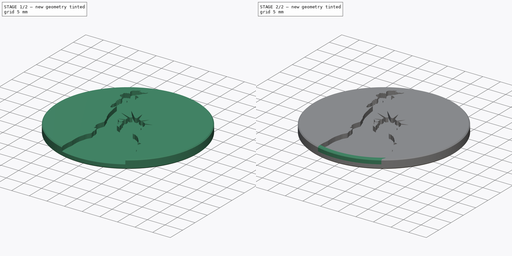
[diagram: build sequence overview — one tinted view per stage of 2, left to right]
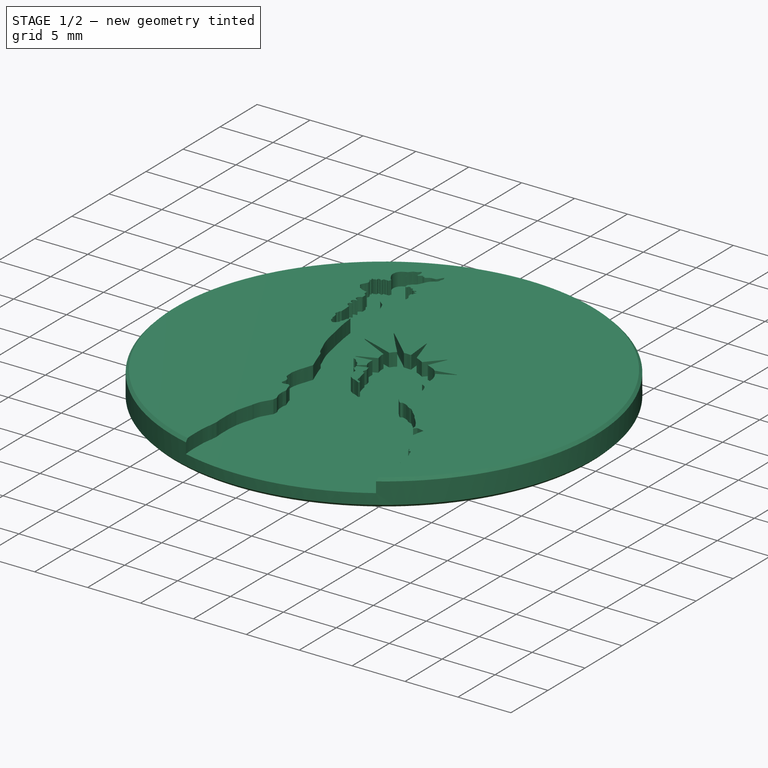
[diagram: stage 1 of 2 — iso view after this stage's code; geometry added in this stage tinted green]
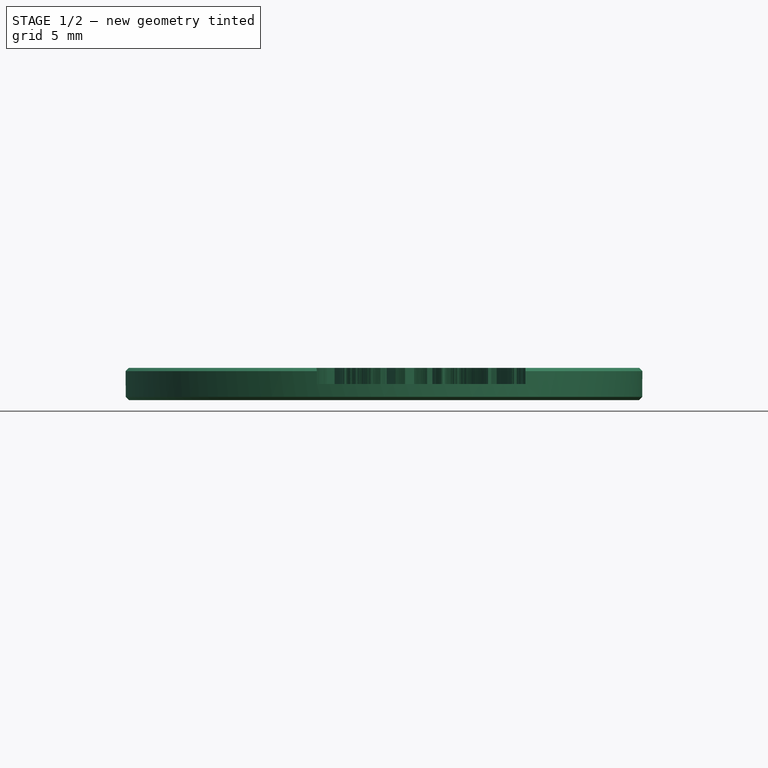
[diagram: stage 1 of 2 — front view after this stage's code; geometry added in this stage tinted green]
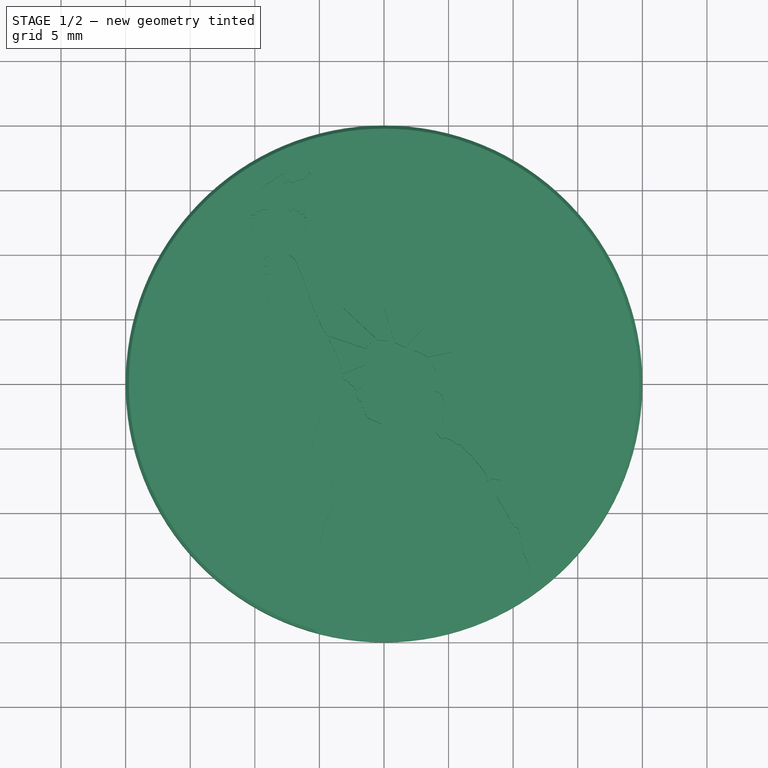
[diagram: stage 1 of 2 — top view after this stage's code; geometry added in this stage tinted green]
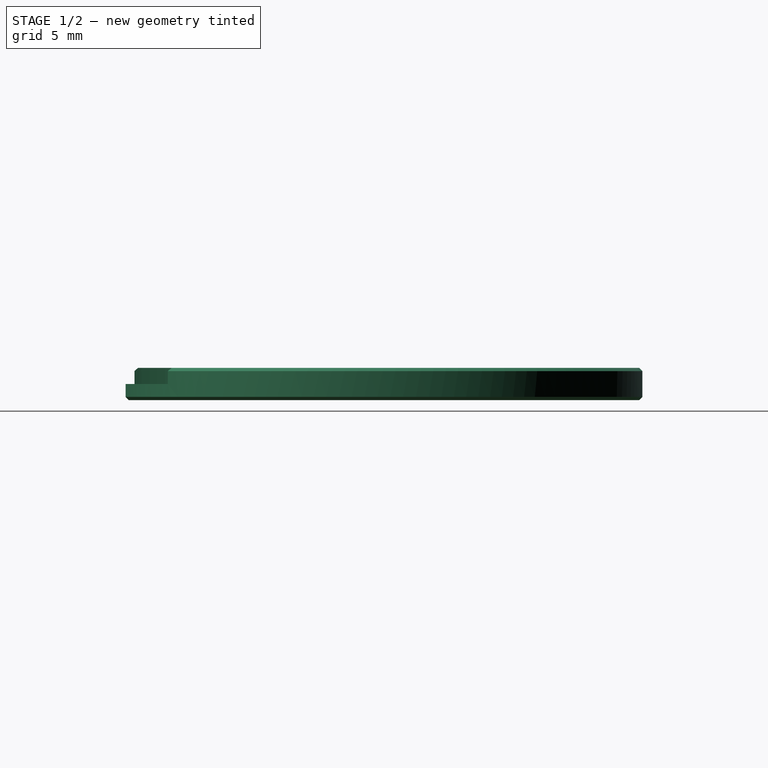
[diagram: stage 1 of 2 — right view after this stage's code; geometry added in this stage tinted green]
FCSTD DOCUMENT  (FreeCAD 0.20R29603 (Git))
Label: statueofliberty-coin-44630
License: All rights reserved
LicenseURL: http://en.wikipedia.org/wiki/All_rights_reserved
objects: Sketcher::SketchObject×5, Part::Feature×4, Part::FeaturePython×3, PartDesign::Plane×2, PartDesign::Revolution×2, App::DocumentObjectGroup×2, App::TextDocument×1, Spreadsheet::Sheet×1, PartDesign::Pocket×1, PartDesign::Body×1
note: 21 computed .brp shape members not serialized (recipe doc carries the construction recipe); baked Part::Feature solids carry a one-line shape summary decoded from their .brp

FEATURE [App::TextDocument] Text_document  label="Text document"
  Text = https://publicdomainvectors.org/en/free-clipart/Statue-Of-Liberty-Silhouette/44630.html
FEATURE [Spreadsheet::Sheet] Spreadsheet
  cells = A2=Vector X center; B2=vec_x; C2(dim_vec_x)==-11 mm; A3=Vector Y center; B3=vec_y; C3(dim_vec_y)==17 mm; A4=Coin radius; B4=coin_r; C4(dim_coin_r)==20 mm; A5=Coin height; B5=coin_h; C5(dim_coin_h)==2.5 mm; D5==2.5 mm; A6=Engrave depth; B6=engrave_h; C6(dim_engrave_h)==dim_coin_h / 2; A7=Chamfer width; B7=chamfer_w; C7(dim_chamfer_w)==dim_coin_h / 10; A8=Chamfer radius; B8=chamfer_r; C8(dim_chamfer_r)==dim_coin_r - dim_chamfer_w; A9=SVG Scale; B9=svg_scale; C9=0.08; A11=Edge dimple radius; B11=dimple_r; C11(dim_dimple_r)==0.5 mm; A12=Edge dimple count; B12=dimple_count; C12(dim_dimple_count)=64
FEATURE [PartDesign::Plane] DatumPlane  label="BaseXYDatumPlane"
  Length = 60
  MapMode = 5
  ResizeMode = 0
  Support = -> [XY_Plane]
  Width = 60
FEATURE [Sketcher::SketchObject] Sketch001  label="CircleSketch"
  FullyConstrained = true
  MapMode = 5
  Support = -> [DatumPlane]
  expr: Constraints[1] = Spreadsheet.dim_coin_r - Spreadsheet.dim_chamfer_w
  expr: Constraints[3] = Spreadsheet.dim_coin_r - 1 mm
  sketch-geometry (6):
    g0: Circle CenterX=0 CenterY=0 CenterZ=0 NormalX=0 NormalY=0 NormalZ=1 AngleXU=0 Radius=19.75
    g1: Circle CenterX=0 CenterY=0 CenterZ=0 NormalX=0 NormalY=0 NormalZ=1 AngleXU=0 Radius=19
    g2: LineSegment StartX=0 StartY=0 StartZ=0 EndX=0 EndY=19 EndZ=0
    g3: LineSegment StartX=0 StartY=0 StartZ=0 EndX=0 EndY=-19 EndZ=0
    g4: LineSegment StartX=0 StartY=0 StartZ=0 EndX=-19 EndY=0 EndZ=0
    g5: LineSegment StartX=0 StartY=0 StartZ=0 EndX=19 EndY=0 EndZ=0
  constraints (16):
    c: Coincident(g0,g-1)
    c: Radius(g0) = 19.75
    c: Coincident(g1,g0)
    c: Radius(g1) = 19
    c: Coincident(g2,g0)
    c: PointOnObject(g2,g1)
    c: Vertical(g2)
    c: Coincident(g3,g0)
    c: PointOnObject(g3,g1)
    c: Vertical(g3)
    c: Coincident(g4,g0)
    c: PointOnObject(g4,g1)
    c: Horizontal(g4)
    c: Coincident(g5,g0)
    c: PointOnObject(g5,g1)
    c: Horizontal(g5)
FEATURE [PartDesign::Plane] DatumPlane001  label="ProfileYZDatumPlane"
  Length = 60
  MapMode = 5
  Placement = pos=(0,0,0) rot=(0.57735,0.57735,0.57735;2.0944rad)
  ResizeMode = 0
  Support = -> [YZ_Plane]
  Width = 60
FEATURE [Sketcher::SketchObject] Sketch  label="CoinProfileSketch"
  FullyConstrained = true
  MapMode = 5
  Placement = pos=(0,0,0) rot=(0.57735,0.57735,0.57735;2.0944rad)
  Support = -> [DatumPlane001]
  expr: Constraints[10] = Spreadsheet.dim_chamfer_w
  expr: Constraints[12] = Spreadsheet.dim_coin_h
  expr: Constraints[13] = Spreadsheet.dim_coin_r
  expr: Constraints[14] = Spreadsheet.dim_coin_r
  expr: Constraints[15] = Spreadsheet.dim_coin_h
  expr: Constraints[16] = Spreadsheet.dim_chamfer_r
  sketch-geometry (11):
    g0: LineSegment StartX=0 StartY=0 StartZ=0 EndX=0 EndY=-2.5 EndZ=0
    g1: LineSegment StartX=19.75 StartY=0 StartZ=0 EndX=20 EndY=-0.25 EndZ=0
    g2: LineSegment StartX=20 StartY=-0.25 StartZ=0 EndX=20 EndY=-2.25 EndZ=0
    g3: LineSegment StartX=20.25 StartY=0 StartZ=0 EndX=20 EndY=0 EndZ=0
    g4: LineSegment StartX=20 StartY=0 StartZ=0 EndX=20 EndY=-0.25 EndZ=0
    g5: LineSegment StartX=20 StartY=-2.25 StartZ=0 EndX=20 EndY=-2.5 EndZ=0
    g6: LineSegment StartX=0 StartY=0 StartZ=0 EndX=19.75 EndY=0 EndZ=0
    g7: LineSegment StartX=19.75 StartY=0 StartZ=0 EndX=20 EndY=0 EndZ=0
    g8: LineSegment StartX=20 StartY=-2.5 StartZ=0 EndX=19.75 EndY=-2.5 EndZ=0
    g9: LineSegment StartX=19.75 StartY=-2.5 StartZ=0 EndX=0 EndY=-2.5 EndZ=0
    g10: LineSegment StartX=19.75 StartY=-2.5 StartZ=0 EndX=20 EndY=-2.25 EndZ=0
  constraints (31):
    c: Vertical(g0)
    c: Coincident(g1,g2)
    c: Vertical(g2)
    c: Horizontal(g3)
    c: Coincident(g4,g3)
    c: Coincident(g4,g1)
    c: Coincident(g5,g2)
    c: Vertical(g5)
    c: Vertical(g4)
    c: Equal(g3,g4)
    c: DistanceY(g5,g5) = 0.25
    c: Equal(g5,g4)
    c: DistanceY(g5,g3) = 2.5
    c: DistanceX(g0,g5) = 20
    c: DistanceX(g-1,g3) = 20
    c: DistanceY(g0,g-1) = 2.5
    c: DistanceX(g1) = 19.75
    c: Coincident(g6,g0)
    c: Coincident(g6,g1)
    c: Horizontal(g6)
    c: Coincident(g7,g1)
    c: Coincident(g7,g3)
    c: Horizontal(g7)
    c: Coincident(g8,g5)
    c: Horizontal(g8)
    c: Coincident(g9,g8)
    c: Coincident(g9,g0)
    c: Horizontal(g9)
    c: Coincident(g10,g9)
    c: Coincident(g10,g2)
    c: Equal(g9,g6)
FEATURE [PartDesign::Revolution] Revolution  label="CoinRevolution"
  Angle = 360
  Axis = (-1e-16,1e-16,1)
  Base = (0,0,0)
  Placement = pos=(0,0,0) rot=(0.57735,0.57735,0.57735;2.0944rad)
  Profile = -> Sketch
  ReferenceAxis = -> Sketch [V_Axis]
  Reversed = true
FEATURE [Sketcher::SketchObject] Sketch002  label="CoinEdgeProfileSketch"
  FullyConstrained = true
  MapMode = 5
  Placement = pos=(0,0,0) rot=(0.57735,0.57735,0.57735;2.0944rad)
  Support = -> [DatumPlane001]
  expr: Constraints[10] = Spreadsheet.dim_coin_r
  expr: Constraints[11] = Spreadsheet.dim_coin_h
  expr: Constraints[17] = Spreadsheet.dim_chamfer_r
  expr: Constraints[6] = Spreadsheet.dim_chamfer_w
  expr: Constraints[8] = Spreadsheet.dim_coin_h
  expr: Constraints[9] = Spreadsheet.dim_coin_r
  sketch-geometry (13):
    g0: LineSegment StartX=0 StartY=2e-16 StartZ=0 EndX=0 EndY=-2.5 EndZ=0
    g1: LineSegment StartX=20 StartY=-0.25 StartZ=0 EndX=20 EndY=-2.25 EndZ=0
    g2: LineSegment StartX=20 StartY=2e-16 StartZ=0 EndX=20 EndY=-0.25 EndZ=0
    g3: LineSegment StartX=20 StartY=-2.25 StartZ=0 EndX=20 EndY=-2.5 EndZ=0
    g4: LineSegment StartX=0 StartY=2e-16 StartZ=0 EndX=19 EndY=2e-16 EndZ=0
    g5: LineSegment StartX=19 StartY=2e-16 StartZ=0 EndX=19 EndY=-2.5 EndZ=0
    g6: LineSegment StartX=19 StartY=2e-16 StartZ=0 EndX=19.75 EndY=2e-16 EndZ=0
    g7: LineSegment StartX=19.75 StartY=2e-16 StartZ=0 EndX=20 EndY=-0.25 EndZ=0
    g8: LineSegment StartX=19.75 StartY=2e-16 StartZ=0 EndX=20 EndY=2e-16 EndZ=0
    g9: LineSegment StartX=20 StartY=-2.5 StartZ=0 EndX=19.75 EndY=-2.5 EndZ=0
    g10: LineSegment StartX=19 StartY=-2.5 StartZ=0 EndX=0 EndY=-2.5 EndZ=0
    g11: LineSegment StartX=19.75 StartY=-2.5 StartZ=0 EndX=20 EndY=-2.25 EndZ=0
    g12: LineSegment StartX=19.75 StartY=-2.5 StartZ=0 EndX=19 EndY=-2.5 EndZ=0
  constraints (36):
    c: Vertical(g0)
    c: Coincident(g0,g4)
    c: Vertical(g1)
    c: Coincident(g3,g1)
    c: Vertical(g3)
    c: Vertical(g2)
    c: DistanceY(g3,g3) = 0.25
    c: Equal(g3,g2)
    c: DistanceY(g3,g2) = 2.5
    c: DistanceX(g0,g3) = 20
    c: DistanceX(g-1,g2) = 20
    c: DistanceY(g0,g-1) = 2.5
    c: Horizontal(g4)
    c: Vertical(g5)
    c: DistanceX(g4,g2) = 1
    c: Coincident(g6,g5)
    c: Horizontal(g6)
    c: DistanceX(g0,g6) = 19.75
    c: Coincident(g7,g6)
    c: Coincident(g7,g1)
    c: Coincident(g8,g6)
    c: Coincident(g8,g2)
    c: Horizontal(g8)
    c: Coincident(g4,g5)
    c: Coincident(g2,g1)
    c: Coincident(g9,g3)
    c: Horizontal(g9)
    c: Coincident(g10,g5)
    c: Coincident(g10,g0)
    c: Horizontal(g10)
    c: Coincident(g11,g9)
    c: Coincident(g11,g1)
    c: Coincident(g12,g11)
    c: Coincident(g12,g5)
    c: Horizontal(g12)
    c: Equal(g12,g6)
FEATURE [Sketcher::SketchObject] Sketch004  label="EdgeDimpleSketch"
  FullyConstrained = true
  MapMode = 5
  Support = -> [DatumPlane]
  expr: Constraints[2] = Spreadsheet.dim_coin_r
  sketch-geometry (2):
    g0: LineSegment StartX=0 StartY=0 StartZ=0 EndX=20 EndY=0 EndZ=0
    g1: Circle CenterX=20 CenterY=0 CenterZ=0 NormalX=0 NormalY=0 NormalZ=1 AngleXU=0 Radius=0.5
  constraints (5):
    c: Horizontal(g0)
    c: Coincident(g1,g0)
    c: DistanceX(g0,g0) = 20
    c: Coincident(g0,g-1)
    c: Radius(g1) = 0.5
FEATURE [Part::Feature] Path
  shape: bbox 362 x 788.2 x 2e-07 mm, 0 faces, 0 solids (baked)
FEATURE [Part::Feature] Path001
  shape: bbox 46.69 x 47.7 x 2e-07 mm, 0 faces, 0 solids (baked)
FEATURE [Part::Feature] Path002
  shape: bbox 27.52 x 23.6 x 2e-07 mm, 0 faces, 0 solids (baked)
FEATURE [Part::Feature] Path003
  shape: bbox 32.08 x 44.77 x 2e-07 mm, 0 faces, 0 solids (baked)
FEATURE [App::DocumentObjectGroup] Group  label="OutlineGroup"
  Group = -> [Path,Path001,Path002,Path003]
FEATURE [Part::FeaturePython] Clone  label="Resize004"  # Draft clone (typed FeaturePython)
  AttacherType = Attacher::AttachEngine3D
  Fuse = false
  Objects = -> [Path,Path001,Path002,Path003]
  Placement = pos=(-8,16,0) rot=(0,0,1;0rad)
  Scale = (0.04,0.04,0.04)
FEATURE [Part::FeaturePython] Clone001  label="Resize008"  # Draft clone (typed FeaturePython)
  AttacherType = Attacher::AttachEngine3D
  Fuse = false
  Objects = -> [Path,Path001,Path002,Path003]
  Placement = pos=(-13,23,0) rot=(0,0,1;0rad)
  Scale = (0.08,0.08,0.08)
FEATURE [Part::FeaturePython] Clone002  label="Resize006"  # Draft clone (typed FeaturePython)
  AttacherType = Attacher::AttachEngine3D
  Fuse = false
  Objects = -> [Path,Path001,Path002,Path003]
  Placement = pos=(-11,17,0) rot=(0,0,1;0rad)
  Scale = (0.06,0.06,0.06)
FEATURE [App::DocumentObjectGroup] Group004  label="ResizeGroup"
  Group = -> [Clone,Clone001,Clone002]
FEATURE [Sketcher::SketchObject] Sketch005  label="VectorSketch"
  FullyConstrained = false
  sketch-geometry (418):
    g0: BSplineCurve PolesCount=4 KnotsCount=2 Degree=3 IsPeriodic=0
    g1: BSplineCurve PolesCount=4 KnotsCount=2 Degree=3 IsPeriodic=0
    g2: BSplineCurve PolesCount=4 KnotsCount=2 Degree=3 IsPeriodic=0
    g3: BSplineCurve PolesCount=4 KnotsCount=2 Degree=3 IsPeriodic=0
    g4: BSplineCurve PolesCount=4 KnotsCount=2 Degree=3 IsPeriodic=0
    g5: BSplineCurve PolesCount=4 KnotsCount=2 Degree=3 IsPeriodic=0
    g6: BSplineCurve PolesCount=4 KnotsCount=2 Degree=3 IsPeriodic=0
    g7: BSplineCurve PolesCount=4 KnotsCount=2 Degree=3 IsPeriodic=0
    g8: BSplineCurve PolesCount=4 KnotsCount=2 Degree=3 IsPeriodic=0
    g9: BSplineCurve PolesCount=4 KnotsCount=2 Degree=3 IsPeriodic=0
    g10: BSplineCurve PolesCount=4 KnotsCount=2 Degree=3 IsPeriodic=0
    g11: BSplineCurve PolesCount=4 KnotsCount=2 Degree=3 IsPeriodic=0
    g12: BSplineCurve PolesCount=4 KnotsCount=2 Degree=3 IsPeriodic=0
    g13: BSplineCurve PolesCount=4 KnotsCount=2 Degree=3 IsPeriodic=0
    g14: BSplineCurve PolesCount=4 KnotsCount=2 Degree=3 IsPeriodic=0
    g15: BSplineCurve PolesCount=4 KnotsCount=2 Degree=3 IsPeriodic=0
    g16: BSplineCurve PolesCount=4 KnotsCount=2 Degree=3 IsPeriodic=0
    g17: BSplineCurve PolesCount=4 KnotsCount=2 Degree=3 IsPeriodic=0
    g18: BSplineCurve PolesCount=4 KnotsCount=2 Degree=3 IsPeriodic=0
    g19: BSplineCurve PolesCount=4 KnotsCount=2 Degree=3 IsPeriodic=0
    g20: BSplineCurve PolesCount=4 KnotsCount=2 Degree=3 IsPeriodic=0
    g21: BSplineCurve PolesCount=4 KnotsCount=2 Degree=3 IsPeriodic=0
    g22: BSplineCurve PolesCount=4 KnotsCount=2 Degree=3 IsPeriodic=0
    g23: BSplineCurve PolesCount=4 KnotsCount=2 Degree=3 IsPeriodic=0
    g24: BSplineCurve PolesCount=4 KnotsCount=2 Degree=3 IsPeriodic=0
    g25: BSplineCurve PolesCount=4 KnotsCount=2 Degree=3 IsPeriodic=0
    g26: BSplineCurve PolesCount=4 KnotsCount=2 Degree=3 IsPeriodic=0
    g27: BSplineCurve PolesCount=4 KnotsCount=2 Degree=3 IsPeriodic=0
    g28: BSplineCurve PolesCount=4 KnotsCount=2 Degree=3 IsPeriodic=0
    g29: BSplineCurve PolesCount=4 KnotsCount=2 Degree=3 IsPeriodic=0
    g30: BSplineCurve PolesCount=4 KnotsCount=2 Degree=3 IsPeriodic=0
    g31: BSplineCurve PolesCount=4 KnotsCount=2 Degree=3 IsPeriodic=0
    g32: BSplineCurve PolesCount=4 KnotsCount=2 Degree=3 IsPeriodic=0
    g33: BSplineCurve PolesCount=4 KnotsCount=2 Degree=3 IsPeriodic=0
    g34: BSplineCurve PolesCount=4 KnotsCount=2 Degree=3 IsPeriodic=0
    g35: BSplineCurve PolesCount=4 KnotsCount=2 Degree=3 IsPeriodic=0
    g36: BSplineCurve PolesCount=4 KnotsCount=2 Degree=3 IsPeriodic=0
    g37: BSplineCurve PolesCount=4 KnotsCount=2 Degree=3 IsPeriodic=0
    g38: BSplineCurve PolesCount=4 KnotsCount=2 Degree=3 IsPeriodic=0
    g39: BSplineCurve PolesCount=4 KnotsCount=2 Degree=3 IsPeriodic=0
    g40: BSplineCurve PolesCount=4 KnotsCount=2 Degree=3 IsPeriodic=0
    g41: BSplineCurve PolesCount=4 KnotsCount=2 Degree=3 IsPeriodic=0
    g42: BSplineCurve PolesCount=4 KnotsCount=2 Degree=3 IsPeriodic=0
    g43: BSplineCurve PolesCount=4 KnotsCount=2 Degree=3 IsPeriodic=0
    g44: BSplineCurve PolesCount=4 KnotsCount=2 Degree=3 IsPeriodic=0
    g45: BSplineCurve PolesCount=4 KnotsCount=2 Degree=3 IsPeriodic=0
    g46: BSplineCurve PolesCount=4 KnotsCount=2 Degree=3 IsPeriodic=0
    g47: BSplineCurve PolesCount=4 KnotsCount=2 Degree=3 IsPeriodic=0
    g48: BSplineCurve PolesCount=4 KnotsCount=2 Degree=3 IsPeriodic=0
    g49: BSplineCurve PolesCount=4 KnotsCount=2 Degree=3 IsPeriodic=0
    g50: BSplineCurve PolesCount=4 KnotsCount=2 Degree=3 IsPeriodic=0
    g51: BSplineCurve PolesCount=4 KnotsCount=2 Degree=3 IsPeriodic=0
    g52: BSplineCurve PolesCount=4 KnotsCount=2 Degree=3 IsPeriodic=0
    g53: BSplineCurve PolesCount=4 KnotsCount=2 Degree=3 IsPeriodic=0
    g54: BSplineCurve PolesCount=4 KnotsCount=2 Degree=3 IsPeriodic=0
    g55: BSplineCurve PolesCount=4 KnotsCount=2 Degree=3 IsPeriodic=0
    g56: BSplineCurve PolesCount=4 KnotsCount=2 Degree=3 IsPeriodic=0
    g57: BSplineCurve PolesCount=4 KnotsCount=2 Degree=3 IsPeriodic=0
    g58: BSplineCurve PolesCount=4 KnotsCount=2 Degree=3 IsPeriodic=0
    g59: BSplineCurve PolesCount=4 KnotsCount=2 Degree=3 IsPeriodic=0
    g60: BSplineCurve PolesCount=4 KnotsCount=2 Degree=3 IsPeriodic=0
    g61: BSplineCurve PolesCount=4 KnotsCount=2 Degree=3 IsPeriodic=0
    g62: BSplineCurve PolesCount=4 KnotsCount=2 Degree=3 IsPeriodic=0
    g63: BSplineCurve PolesCount=4 KnotsCount=2 Degree=3 IsPeriodic=0
    g64: BSplineCurve PolesCount=4 KnotsCount=2 Degree=3 IsPeriodic=0
    g65: BSplineCurve PolesCount=4 KnotsCount=2 Degree=3 IsPeriodic=0
    g66: BSplineCurve PolesCount=4 KnotsCount=2 Degree=3 IsPeriodic=0
    g67: BSplineCurve PolesCount=4 KnotsCount=2 Degree=3 IsPeriodic=0
    g68: BSplineCurve PolesCount=4 KnotsCount=2 Degree=3 IsPeriodic=0
    g69: BSplineCurve PolesCount=4 KnotsCount=2 Degree=3 IsPeriodic=0
    g70: BSplineCurve PolesCount=4 KnotsCount=2 Degree=3 IsPeriodic=0
    g71: BSplineCurve PolesCount=4 KnotsCount=2 Degree=3 IsPeriodic=0
    g72: BSplineCurve PolesCount=4 KnotsCount=2 Degree=3 IsPeriodic=0
    g73: BSplineCurve PolesCount=4 KnotsCount=2 Degree=3 IsPeriodic=0
    g74: BSplineCurve PolesCount=4 KnotsCount=2 Degree=3 IsPeriodic=0
    g75: BSplineCurve PolesCount=4 KnotsCount=2 Degree=3 IsPeriodic=0
    g76: BSplineCurve PolesCount=4 KnotsCount=2 Degree=3 IsPeriodic=0
    g77: BSplineCurve PolesCount=4 KnotsCount=2 Degree=3 IsPeriodic=0
    g78: BSplineCurve PolesCount=4 KnotsCount=2 Degree=3 IsPeriodic=0
    g79: BSplineCurve PolesCount=4 KnotsCount=2 Degree=3 IsPeriodic=0
    g80: BSplineCurve PolesCount=4 KnotsCount=2 Degree=3 IsPeriodic=0
    g81: BSplineCurve PolesCount=4 KnotsCount=2 Degree=3 IsPeriodic=0
    g82: BSplineCurve PolesCount=4 KnotsCount=2 Degree=3 IsPeriodic=0
    g83: BSplineCurve PolesCount=4 KnotsCount=2 Degree=3 IsPeriodic=0
    g84: BSplineCurve PolesCount=4 KnotsCount=2 Degree=3 IsPeriodic=0
    g85: BSplineCurve PolesCount=4 KnotsCount=2 Degree=3 IsPeriodic=0
    g86: BSplineCurve PolesCount=4 KnotsCount=2 Degree=3 IsPeriodic=0
    g87: BSplineCurve PolesCount=4 KnotsCount=2 Degree=3 IsPeriodic=0
    g88: BSplineCurve PolesCount=4 KnotsCount=2 Degree=3 IsPeriodic=0
    g89: BSplineCurve PolesCount=4 KnotsCount=2 Degree=3 IsPeriodic=0
    g90: BSplineCurve PolesCount=4 KnotsCount=2 Degree=3 IsPeriodic=0
    g91: BSplineCurve PolesCount=4 KnotsCount=2 Degree=3 IsPeriodic=0
    g92: BSplineCurve PolesCount=4 KnotsCount=2 Degree=3 IsPeriodic=0
    g93: BSplineCurve PolesCount=4 KnotsCount=2 Degree=3 IsPeriodic=0
    g94: BSplineCurve PolesCount=4 KnotsCount=2 Degree=3 IsPeriodic=0
    g95: BSplineCurve PolesCount=4 KnotsCount=2 Degree=3 IsPeriodic=0
    g96: BSplineCurve PolesCount=4 KnotsCount=2 Degree=3 IsPeriodic=0
    g97: BSplineCurve PolesCount=4 KnotsCount=2 Degree=3 IsPeriodic=0
    g98: BSplineCurve PolesCount=4 KnotsCount=2 Degree=3 IsPeriodic=0
    g99: BSplineCurve PolesCount=4 KnotsCount=2 Degree=3 IsPeriodic=0
    g100: BSplineCurve PolesCount=4 KnotsCount=2 Degree=3 IsPeriodic=0
    g101: BSplineCurve PolesCount=4 KnotsCount=2 Degree=3 IsPeriodic=0
    g102: BSplineCurve PolesCount=4 KnotsCount=2 Degree=3 IsPeriodic=0
    g103: BSplineCurve PolesCount=4 KnotsCount=2 Degree=3 IsPeriodic=0
    g104: BSplineCurve PolesCount=4 KnotsCount=2 Degree=3 IsPeriodic=0
    g105: BSplineCurve PolesCount=4 KnotsCount=2 Degree=3 IsPeriodic=0
    g106: BSplineCurve PolesCount=4 KnotsCount=2 Degree=3 IsPeriodic=0
    g107: BSplineCurve PolesCount=4 KnotsCount=2 Degree=3 IsPeriodic=0
    g108: BSplineCurve PolesCount=4 KnotsCount=2 Degree=3 IsPeriodic=0
    g109: BSplineCurve PolesCount=4 KnotsCount=2 Degree=3 IsPeriodic=0
    g110: BSplineCurve PolesCount=4 KnotsCount=2 Degree=3 IsPeriodic=0
    g111: BSplineCurve PolesCount=4 KnotsCount=2 Degree=3 IsPeriodic=0
    g112: BSplineCurve PolesCount=4 KnotsCount=2 Degree=3 IsPeriodic=0
    g113: BSplineCurve PolesCount=4 KnotsCount=2 Degree=3 IsPeriodic=0
    g114: BSplineCurve PolesCount=4 KnotsCount=2 Degree=3 IsPeriodic=0
    g115: BSplineCurve PolesCount=4 KnotsCount=2 Degree=3 IsPeriodic=0
    g116: BSplineCurve PolesCount=4 KnotsCount=2 Degree=3 IsPeriodic=0
    g117: BSplineCurve PolesCount=4 KnotsCount=2 Degree=3 IsPeriodic=0
    g118: BSplineCurve PolesCount=4 KnotsCount=2 Degree=3 IsPeriodic=0
    g119: BSplineCurve PolesCount=4 KnotsCount=2 Degree=3 IsPeriodic=0
    g120: BSplineCurve PolesCount=4 KnotsCount=2 Degree=3 IsPeriodic=0
    g121: BSplineCurve PolesCount=4 KnotsCount=2 Degree=3 IsPeriodic=0
    g122: BSplineCurve PolesCount=4 KnotsCount=2 Degree=3 IsPeriodic=0
    g123: BSplineCurve PolesCount=4 KnotsCount=2 Degree=3 IsPeriodic=0
    g124: BSplineCurve PolesCount=4 KnotsCount=2 Degree=3 IsPeriodic=0
    g125: BSplineCurve PolesCount=4 KnotsCount=2 Degree=3 IsPeriodic=0
    g126: BSplineCurve PolesCount=4 KnotsCount=2 Degree=3 IsPeriodic=0
    g127: BSplineCurve PolesCount=4 KnotsCount=2 Degree=3 IsPeriodic=0
    g128: BSplineCurve PolesCount=4 KnotsCount=2 Degree=3 IsPeriodic=0
    g129: BSplineCurve PolesCount=4 KnotsCount=2 Degree=3 IsPeriodic=0
    g130: BSplineCurve PolesCount=4 KnotsCount=2 Degree=3 IsPeriodic=0
    g131: BSplineCurve PolesCount=4 KnotsCount=2 Degree=3 IsPeriodic=0
    g132: BSplineCurve PolesCount=4 KnotsCount=2 Degree=3 IsPeriodic=0
    g133: BSplineCurve PolesCount=4 KnotsCount=2 Degree=3 IsPeriodic=0
    g134: BSplineCurve PolesCount=4 KnotsCount=2 Degree=3 IsPeriodic=0
    g135: BSplineCurve PolesCount=4 KnotsCount=2 Degree=3 IsPeriodic=0
    g136: BSplineCurve PolesCount=4 KnotsCount=2 Degree=3 IsPeriodic=0
    g137: BSplineCurve PolesCount=4 KnotsCount=2 Degree=3 IsPeriodic=0
    g138: BSplineCurve PolesCount=4 KnotsCount=2 Degree=3 IsPeriodic=0
    g139: BSplineCurve PolesCount=4 KnotsCount=2 Degree=3 IsPeriodic=0
    g140: BSplineCurve PolesCount=4 KnotsCount=2 Degree=3 IsPeriodic=0
    g141: BSplineCurve PolesCount=4 KnotsCount=2 Degree=3 IsPeriodic=0
    g142: BSplineCurve PolesCount=4 KnotsCount=2 Degree=3 IsPeriodic=0
    g143: BSplineCurve PolesCount=4 KnotsCount=2 Degree=3 IsPeriodic=0
    g144: BSplineCurve PolesCount=4 KnotsCount=2 Degree=3 IsPeriodic=0
    g145: BSplineCurve PolesCount=4 KnotsCount=2 Degree=3 IsPeriodic=0
    g146: BSplineCurve PolesCount=4 KnotsCount=2 Degree=3 IsPeriodic=0
    g147: BSplineCurve PolesCount=4 KnotsCount=2 Degree=3 IsPeriodic=0
    g148: BSplineCurve PolesCount=4 KnotsCount=2 Degree=3 IsPeriodic=0
    g149: BSplineCurve PolesCount=4 KnotsCount=2 Degree=3 IsPeriodic=0
    g150: BSplineCurve PolesCount=4 KnotsCount=2 Degree=3 IsPeriodic=0
    g151: BSplineCurve PolesCount=4 KnotsCount=2 Degree=3 IsPeriodic=0
    g152: BSplineCurve PolesCount=4 KnotsCount=2 Degree=3 IsPeriodic=0
    g153: BSplineCurve PolesCount=4 KnotsCount=2 Degree=3 IsPeriodic=0
    g154: BSplineCurve PolesCount=4 KnotsCount=2 Degree=3 IsPeriodic=0
    g155: BSplineCurve PolesCount=4 KnotsCount=2 Degree=3 IsPeriodic=0
    g156: BSplineCurve PolesCount=4 KnotsCount=2 Degree=3 IsPeriodic=0
    g157: BSplineCurve PolesCount=4 KnotsCount=2 Degree=3 IsPeriodic=0
    g158: BSplineCurve PolesCount=4 KnotsCount=2 Degree=3 IsPeriodic=0
    g159: BSplineCurve PolesCount=4 KnotsCount=2 Degree=3 IsPeriodic=0
    g160: BSplineCurve PolesCount=4 KnotsCount=2 Degree=3 IsPeriodic=0
    g161: BSplineCurve PolesCount=4 KnotsCount=2 Degree=3 IsPeriodic=0
    g162: BSplineCurve PolesCount=4 KnotsCount=2 Degree=3 IsPeriodic=0
    g163: BSplineCurve PolesCount=4 KnotsCount=2 Degree=3 IsPeriodic=0
    g164: BSplineCurve PolesCount=4 KnotsCount=2 Degree=3 IsPeriodic=0
    g165: BSplineCurve PolesCount=4 KnotsCount=2 Degree=3 IsPeriodic=0
    g166: BSplineCurve PolesCount=4 KnotsCount=2 Degree=3 IsPeriodic=0
    g167: BSplineCurve PolesCount=4 KnotsCount=2 Degree=3 IsPeriodic=0
    g168: BSplineCurve PolesCount=4 KnotsCount=2 Degree=3 IsPeriodic=0
    g169: BSplineCurve PolesCount=4 KnotsCount=2 Degree=3 IsPeriodic=0
    g170: BSplineCurve PolesCount=4 KnotsCount=2 Degree=3 IsPeriodic=0
    g171: BSplineCurve PolesCount=4 KnotsCount=2 Degree=3 IsPeriodic=0
    g172: BSplineCurve PolesCount=4 KnotsCount=2 Degree=3 IsPeriodic=0
    g173: BSplineCurve PolesCount=4 KnotsCount=2 Degree=3 IsPeriodic=0
    g174: BSplineCurve PolesCount=4 KnotsCount=2 Degree=3 IsPeriodic=0
    g175: BSplineCurve PolesCount=4 KnotsCount=2 Degree=3 IsPeriodic=0
    g176: BSplineCurve PolesCount=4 KnotsCount=2 Degree=3 IsPeriodic=0
    g177: BSplineCurve PolesCount=4 KnotsCount=2 Degree=3 IsPeriodic=0
    g178: BSplineCurve PolesCount=4 KnotsCount=2 Degree=3 IsPeriodic=0
    g179: BSplineCurve PolesCount=4 KnotsCount=2 Degree=3 IsPeriodic=0
    g180: BSplineCurve PolesCount=4 KnotsCount=2 Degree=3 IsPeriodic=0
    g181: BSplineCurve PolesCount=4 KnotsCount=2 Degree=3 IsPeriodic=0
    g182: BSplineCurve PolesCount=4 KnotsCount=2 Degree=3 IsPeriodic=0
    g183: BSplineCurve PolesCount=4 KnotsCount=2 Degree=3 IsPeriodic=0
    g184: BSplineCurve PolesCount=4 KnotsCount=2 Degree=3 IsPeriodic=0
    g185: BSplineCurve PolesCount=4 KnotsCount=2 Degree=3 IsPeriodic=0
    g186: BSplineCurve PolesCount=4 KnotsCount=2 Degree=3 IsPeriodic=0
    g187: BSplineCurve PolesCount=4 KnotsCount=2 Degree=3 IsPeriodic=0
    g188: BSplineCurve PolesCount=4 KnotsCount=2 Degree=3 IsPeriodic=0
    g189: BSplineCurve PolesCount=4 KnotsCount=2 Degree=3 IsPeriodic=0
    g190: BSplineCurve PolesCount=4 KnotsCount=2 Degree=3 IsPeriodic=0
    g191: BSplineCurve PolesCount=4 KnotsCount=2 Degree=3 IsPeriodic=0
    g192: BSplineCurve PolesCount=4 KnotsCount=2 Degree=3 IsPeriodic=0
    g193: BSplineCurve PolesCount=4 KnotsCount=2 Degree=3 IsPeriodic=0
    g194: BSplineCurve PolesCount=4 KnotsCount=2 Degree=3 IsPeriodic=0
    g195: BSplineCurve PolesCount=2 KnotsCount=2 Degree=1 IsPeriodic=0
    g196: BSplineCurve PolesCount=4 KnotsCount=2 Degree=3 IsPeriodic=0
    g197: BSplineCurve PolesCount=4 KnotsCount=2 Degree=3 IsPeriodic=0
    g198: BSplineCurve PolesCount=4 KnotsCount=2 Degree=3 IsPeriodic=0
    g199: BSplineCurve PolesCount=4 KnotsCount=2 Degree=3 IsPeriodic=0
    g200: BSplineCurve PolesCount=4 KnotsCount=2 Degree=3 IsPeriodic=0
    g201: BSplineCurve PolesCount=4 KnotsCount=2 Degree=3 IsPeriodic=0
    g202: BSplineCurve PolesCount=4 KnotsCount=2 Degree=3 IsPeriodic=0
    g203: BSplineCurve PolesCount=4 KnotsCount=2 Degree=3 IsPeriodic=0
    g204: BSplineCurve PolesCount=4 KnotsCount=2 Degree=3 IsPeriodic=0
    g205: BSplineCurve PolesCount=4 KnotsCount=2 Degree=3 IsPeriodic=0
    g206: BSplineCurve PolesCount=4 KnotsCount=2 Degree=3 IsPeriodic=0
    g207: BSplineCurve PolesCount=4 KnotsCount=2 Degree=3 IsPeriodic=0
    g208: BSplineCurve PolesCount=4 KnotsCount=2 Degree=3 IsPeriodic=0
    g209: BSplineCurve PolesCount=4 KnotsCount=2 Degree=3 IsPeriodic=0
    g210: BSplineCurve PolesCount=4 KnotsCount=2 Degree=3 IsPeriodic=0
    g211: BSplineCurve PolesCount=4 KnotsCount=2 Degree=3 IsPeriodic=0
    g212: BSplineCurve PolesCount=4 KnotsCount=2 Degree=3 IsPeriodic=0
    g213: BSplineCurve PolesCount=4 KnotsCount=2 Degree=3 IsPeriodic=0
    g214: BSplineCurve PolesCount=4 KnotsCount=2 Degree=3 IsPeriodic=0
    g215: BSplineCurve PolesCount=4 KnotsCount=2 Degree=3 IsPeriodic=0
    g216: BSplineCurve PolesCount=4 KnotsCount=2 Degree=3 IsPeriodic=0
    g217: BSplineCurve PolesCount=4 KnotsCount=2 Degree=3 IsPeriodic=0
    g218: BSplineCurve PolesCount=4 KnotsCount=2 Degree=3 IsPeriodic=0
    g219: BSplineCurve PolesCount=4 KnotsCount=2 Degree=3 IsPeriodic=0
    g220: BSplineCurve PolesCount=4 KnotsCount=2 Degree=3 IsPeriodic=0
    g221: BSplineCurve PolesCount=4 KnotsCount=2 Degree=3 IsPeriodic=0
    g222: BSplineCurve PolesCount=4 KnotsCount=2 Degree=3 IsPeriodic=0
    g223: BSplineCurve PolesCount=4 KnotsCount=2 Degree=3 IsPeriodic=0
    g224: BSplineCurve PolesCount=4 KnotsCount=2 Degree=3 IsPeriodic=0
    g225: BSplineCurve PolesCount=4 KnotsCount=2 Degree=3 IsPeriodic=0
    g226: BSplineCurve PolesCount=4 KnotsCount=2 Degree=3 IsPeriodic=0
    g227: BSplineCurve PolesCount=4 KnotsCount=2 Degree=3 IsPeriodic=0
    g228: BSplineCurve PolesCount=4 KnotsCount=2 Degree=3 IsPeriodic=0
    g229: BSplineCurve PolesCount=4 KnotsCount=2 Degree=3 IsPeriodic=0
    g230: BSplineCurve PolesCount=4 KnotsCount=2 Degree=3 IsPeriodic=0
    g231: BSplineCurve PolesCount=4 KnotsCount=2 Degree=3 IsPeriodic=0
    g232: BSplineCurve PolesCount=4 KnotsCount=2 Degree=3 IsPeriodic=0
    g233: BSplineCurve PolesCount=4 KnotsCount=2 Degree=3 IsPeriodic=0
    g234: BSplineCurve PolesCount=4 KnotsCount=2 Degree=3 IsPeriodic=0
    g235: BSplineCurve PolesCount=4 KnotsCount=2 Degree=3 IsPeriodic=0
    g236: BSplineCurve PolesCount=4 KnotsCount=2 Degree=3 IsPeriodic=0
    g237: BSplineCurve PolesCount=4 KnotsCount=2 Degree=3 IsPeriodic=0
    g238: BSplineCurve PolesCount=4 KnotsCount=2 Degree=3 IsPeriodic=0
    g239: BSplineCurve PolesCount=4 KnotsCount=2 Degree=3 IsPeriodic=0
    g240: BSplineCurve PolesCount=4 KnotsCount=2 Degree=3 IsPeriodic=0
    g241: BSplineCurve PolesCount=4 KnotsCount=2 Degree=3 IsPeriodic=0
    g242: BSplineCurve PolesCount=4 KnotsCount=2 Degree=3 IsPeriodic=0
    g243: BSplineCurve PolesCount=4 KnotsCount=2 Degree=3 IsPeriodic=0
    g244: BSplineCurve PolesCount=4 KnotsCount=2 Degree=3 IsPeriodic=0
    g245: BSplineCurve PolesCount=4 KnotsCount=2 Degree=3 IsPeriodic=0
    g246: BSplineCurve PolesCount=4 KnotsCount=2 Degree=3 IsPeriodic=0
    g247: BSplineCurve PolesCount=4 KnotsCount=2 Degree=3 IsPeriodic=0
    g248: BSplineCurve PolesCount=4 KnotsCount=2 Degree=3 IsPeriodic=0
    g249: BSplineCurve PolesCount=4 KnotsCount=2 Degree=3 IsPeriodic=0
    g250: BSplineCurve PolesCount=4 KnotsCount=2 Degree=3 IsPeriodic=0
    g251: BSplineCurve PolesCount=4 KnotsCount=2 Degree=3 IsPeriodic=0
    g252: BSplineCurve PolesCount=4 KnotsCount=2 Degree=3 IsPeriodic=0
    g253: BSplineCurve PolesCount=4 KnotsCount=2 Degree=3 IsPeriodic=0
    g254: BSplineCurve PolesCount=4 KnotsCount=2 Degree=3 IsPeriodic=0
    g255: BSplineCurve PolesCount=4 KnotsCount=2 Degree=3 IsPeriodic=0
    g256: BSplineCurve PolesCount=4 KnotsCount=2 Degree=3 IsPeriodic=0
    g257: BSplineCurve PolesCount=4 KnotsCount=2 Degree=3 IsPeriodic=0
    g258: BSplineCurve PolesCount=4 KnotsCount=2 Degree=3 IsPeriodic=0
    g259: BSplineCurve PolesCount=4 KnotsCount=2 Degree=3 IsPeriodic=0
    g260: BSplineCurve PolesCount=4 KnotsCount=2 Degree=3 IsPeriodic=0
    g261: BSplineCurve PolesCount=4 KnotsCount=2 Degree=3 IsPeriodic=0
    g262: BSplineCurve PolesCount=4 KnotsCount=2 Degree=3 IsPeriodic=0
    g263: BSplineCurve PolesCount=4 KnotsCount=2 Degree=3 IsPeriodic=0
    g264: BSplineCurve PolesCount=4 KnotsCount=2 Degree=3 IsPeriodic=0
    g265: BSplineCurve PolesCount=4 KnotsCount=2 Degree=3 IsPeriodic=0
    g266: BSplineCurve PolesCount=4 KnotsCount=2 Degree=3 IsPeriodic=0
    g267: BSplineCurve PolesCount=4 KnotsCount=2 Degree=3 IsPeriodic=0
    g268: BSplineCurve PolesCount=4 KnotsCount=2 Degree=3 IsPeriodic=0
    g269: BSplineCurve PolesCount=4 KnotsCount=2 Degree=3 IsPeriodic=0
    g270: BSplineCurve PolesCount=4 KnotsCount=2 Degree=3 IsPeriodic=0
    g271: BSplineCurve PolesCount=4 KnotsCount=2 Degree=3 IsPeriodic=0
    g272: BSplineCurve PolesCount=4 KnotsCount=2 Degree=3 IsPeriodic=0
    g273: BSplineCurve PolesCount=4 KnotsCount=2 Degree=3 IsPeriodic=0
    g274: BSplineCurve PolesCount=4 KnotsCount=2 Degree=3 IsPeriodic=0
    g275: BSplineCurve PolesCount=4 KnotsCount=2 Degree=3 IsPeriodic=0
    g276: BSplineCurve PolesCount=4 KnotsCount=2 Degree=3 IsPeriodic=0
    g277: BSplineCurve PolesCount=4 KnotsCount=2 Degree=3 IsPeriodic=0
    g278: BSplineCurve PolesCount=4 KnotsCount=2 Degree=3 IsPeriodic=0
    g279: BSplineCurve PolesCount=4 KnotsCount=2 Degree=3 IsPeriodic=0
    g280: BSplineCurve PolesCount=4 KnotsCount=2 Degree=3 IsPeriodic=0
    g281: BSplineCurve PolesCount=4 KnotsCount=2 Degree=3 IsPeriodic=0
    g282: BSplineCurve PolesCount=4 KnotsCount=2 Degree=3 IsPeriodic=0
    g283: BSplineCurve PolesCount=4 KnotsCount=2 Degree=3 IsPeriodic=0
    g284: BSplineCurve PolesCount=4 KnotsCount=2 Degree=3 IsPeriodic=0
    g285: BSplineCurve PolesCount=4 KnotsCount=2 Degree=3 IsPeriodic=0
    g286: BSplineCurve PolesCount=4 KnotsCount=2 Degree=3 IsPeriodic=0
    g287: BSplineCurve PolesCount=4 KnotsCount=2 Degree=3 IsPeriodic=0
    g288: BSplineCurve PolesCount=4 KnotsCount=2 Degree=3 IsPeriodic=0
    g289: BSplineCurve PolesCount=4 KnotsCount=2 Degree=3 IsPeriodic=0
    g290: BSplineCurve PolesCount=4 KnotsCount=2 Degree=3 IsPeriodic=0
    g291: BSplineCurve PolesCount=4 KnotsCount=2 Degree=3 IsPeriodic=0
    g292: BSplineCurve PolesCount=4 KnotsCount=2 Degree=3 IsPeriodic=0
    g293: BSplineCurve PolesCount=4 KnotsCount=2 Degree=3 IsPeriodic=0
    g294: BSplineCurve PolesCount=4 KnotsCount=2 Degree=3 IsPeriodic=0
    g295: BSplineCurve PolesCount=4 KnotsCount=2 Degree=3 IsPeriodic=0
    g296: BSplineCurve PolesCount=4 KnotsCount=2 Degree=3 IsPeriodic=0
    g297: BSplineCurve PolesCount=4 KnotsCount=2 Degree=3 IsPeriodic=0
    g298: BSplineCurve PolesCount=4 KnotsCount=2 Degree=3 IsPeriodic=0
    g299: BSplineCurve PolesCount=4 KnotsCount=2 Degree=3 IsPeriodic=0
    g300: BSplineCurve PolesCount=4 KnotsCount=2 Degree=3 IsPeriodic=0
    g301: BSplineCurve PolesCount=4 KnotsCount=2 Degree=3 IsPeriodic=0
    g302: BSplineCurve PolesCount=4 KnotsCount=2 Degree=3 IsPeriodic=0
    g303: BSplineCurve PolesCount=4 KnotsCount=2 Degree=3 IsPeriodic=0
    g304: BSplineCurve PolesCount=4 KnotsCount=2 Degree=3 IsPeriodic=0
    g305: BSplineCurve PolesCount=4 KnotsCount=2 Degree=3 IsPeriodic=0
    g306: BSplineCurve PolesCount=4 KnotsCount=2 Degree=3 IsPeriodic=0
    g307: BSplineCurve PolesCount=4 KnotsCount=2 Degree=3 IsPeriodic=0
    g308: BSplineCurve PolesCount=4 KnotsCount=2 Degree=3 IsPeriodic=0
    g309: BSplineCurve PolesCount=4 KnotsCount=2 Degree=3 IsPeriodic=0
    g310: BSplineCurve PolesCount=4 KnotsCount=2 Degree=3 IsPeriodic=0
    g311: BSplineCurve PolesCount=4 KnotsCount=2 Degree=3 IsPeriodic=0
    g312: BSplineCurve PolesCount=4 KnotsCount=2 Degree=3 IsPeriodic=0
    g313: BSplineCurve PolesCount=4 KnotsCount=2 Degree=3 IsPeriodic=0
    g314: BSplineCurve PolesCount=4 KnotsCount=2 Degree=3 IsPeriodic=0
    g315: BSplineCurve PolesCount=4 KnotsCount=2 Degree=3 IsPeriodic=0
    g316: BSplineCurve PolesCount=4 KnotsCount=2 Degree=3 IsPeriodic=0
    g317: BSplineCurve PolesCount=4 KnotsCount=2 Degree=3 IsPeriodic=0
    g318: BSplineCurve PolesCount=4 KnotsCount=2 Degree=3 IsPeriodic=0
    g319: BSplineCurve PolesCount=4 KnotsCount=2 Degree=3 IsPeriodic=0
    g320: BSplineCurve PolesCount=4 KnotsCount=2 Degree=3 IsPeriodic=0
    g321: BSplineCurve PolesCount=4 KnotsCount=2 Degree=3 IsPeriodic=0
    g322: BSplineCurve PolesCount=4 KnotsCount=2 Degree=3 IsPeriodic=0
    g323: BSplineCurve PolesCount=4 KnotsCount=2 Degree=3 IsPeriodic=0
    g324: BSplineCurve PolesCount=4 KnotsCount=2 Degree=3 IsPeriodic=0
    g325: BSplineCurve PolesCount=4 KnotsCount=2 Degree=3 IsPeriodic=0
    g326: BSplineCurve PolesCount=4 KnotsCount=2 Degree=3 IsPeriodic=0
    g327: BSplineCurve PolesCount=4 KnotsCount=2 Degree=3 IsPeriodic=0
    g328: BSplineCurve PolesCount=4 KnotsCount=2 Degree=3 IsPeriodic=0
    g329: BSplineCurve PolesCount=4 KnotsCount=2 Degree=3 IsPeriodic=0
    g330: BSplineCurve PolesCount=4 KnotsCount=2 Degree=3 IsPeriodic=0
    g331: BSplineCurve PolesCount=4 KnotsCount=2 Degree=3 IsPeriodic=0
    g332: BSplineCurve PolesCount=4 KnotsCount=2 Degree=3 IsPeriodic=0
    g333: BSplineCurve PolesCount=4 KnotsCount=2 Degree=3 IsPeriodic=0
    g334: BSplineCurve PolesCount=4 KnotsCount=2 Degree=3 IsPeriodic=0
    g335: BSplineCurve PolesCount=4 KnotsCount=2 Degree=3 IsPeriodic=0
    g336: BSplineCurve PolesCount=4 KnotsCount=2 Degree=3 IsPeriodic=0
    g337: BSplineCurve PolesCount=4 KnotsCount=2 Degree=3 IsPeriodic=0
    g338: BSplineCurve PolesCount=4 KnotsCount=2 Degree=3 IsPeriodic=0
    g339: BSplineCurve PolesCount=4 KnotsCount=2 Degree=3 IsPeriodic=0
    g340: BSplineCurve PolesCount=4 KnotsCount=2 Degree=3 IsPeriodic=0
    g341: BSplineCurve PolesCount=4 KnotsCount=2 Degree=3 IsPeriodic=0
    g342: BSplineCurve PolesCount=4 KnotsCount=2 Degree=3 IsPeriodic=0
    g343: BSplineCurve PolesCount=4 KnotsCount=2 Degree=3 IsPeriodic=0
    g344: BSplineCurve PolesCount=4 KnotsCount=2 Degree=3 IsPeriodic=0
    g345: BSplineCurve PolesCount=4 KnotsCount=2 Degree=3 IsPeriodic=0
    g346: BSplineCurve PolesCount=4 KnotsCount=2 Degree=3 IsPeriodic=0
    g347: BSplineCurve PolesCount=4 KnotsCount=2 Degree=3 IsPeriodic=0
    g348: BSplineCurve PolesCount=4 KnotsCount=2 Degree=3 IsPeriodic=0
    g349: BSplineCurve PolesCount=4 KnotsCount=2 Degree=3 IsPeriodic=0
    g350: BSplineCurve PolesCount=4 KnotsCount=2 Degree=3 IsPeriodic=0
    g351: BSplineCurve PolesCount=4 KnotsCount=2 Degree=3 IsPeriodic=0
    g352: BSplineCurve PolesCount=4 KnotsCount=2 Degree=3 IsPeriodic=0
    g353: BSplineCurve PolesCount=4 KnotsCount=2 Degree=3 IsPeriodic=0
    g354: BSplineCurve PolesCount=4 KnotsCount=2 Degree=3 IsPeriodic=0
    g355: BSplineCurve PolesCount=4 KnotsCount=2 Degree=3 IsPeriodic=0
    g356: BSplineCurve PolesCount=4 KnotsCount=2 Degree=3 IsPeriodic=0
    g357: BSplineCurve PolesCount=4 KnotsCount=2 Degree=3 IsPeriodic=0
    g358: BSplineCurve PolesCount=4 KnotsCount=2 Degree=3 IsPeriodic=0
    g359: BSplineCurve PolesCount=4 KnotsCount=2 Degree=3 IsPeriodic=0
    g360: BSplineCurve PolesCount=4 KnotsCount=2 Degree=3 IsPeriodic=0
    g361: BSplineCurve PolesCount=4 KnotsCount=2 Degree=3 IsPeriodic=0
    g362: BSplineCurve PolesCount=4 KnotsCount=2 Degree=3 IsPeriodic=0
    g363: BSplineCurve PolesCount=4 KnotsCount=2 Degree=3 IsPeriodic=0
    g364: BSplineCurve PolesCount=4 KnotsCount=2 Degree=3 IsPeriodic=0
    g365: BSplineCurve PolesCount=4 KnotsCount=2 Degree=3 IsPeriodic=0
    g366: BSplineCurve PolesCount=4 KnotsCount=2 Degree=3 IsPeriodic=0
    g367: BSplineCurve PolesCount=4 KnotsCount=2 Degree=3 IsPeriodic=0
    g368: BSplineCurve PolesCount=4 KnotsCount=2 Degree=3 IsPeriodic=0
    g369: BSplineCurve PolesCount=4 KnotsCount=2 Degree=3 IsPeriodic=0
    g370: BSplineCurve PolesCount=4 KnotsCount=2 Degree=3 IsPeriodic=0
    g371: BSplineCurve PolesCount=4 KnotsCount=2 Degree=3 IsPeriodic=0
    g372: BSplineCurve PolesCount=4 KnotsCount=2 Degree=3 IsPeriodic=0
    g373: BSplineCurve PolesCount=4 KnotsCount=2 Degree=3 IsPeriodic=0
    g374: BSplineCurve PolesCount=4 KnotsCount=2 Degree=3 IsPeriodic=0
    g375: BSplineCurve PolesCount=4 KnotsCount=2 Degree=3 IsPeriodic=0
    g376: BSplineCurve PolesCount=4 KnotsCount=2 Degree=3 IsPeriodic=0
    g377: BSplineCurve PolesCount=4 KnotsCount=2 Degree=3 IsPeriodic=0
    g378: BSplineCurve PolesCount=4 KnotsCount=2 Degree=3 IsPeriodic=0
    g379: BSplineCurve PolesCount=4 KnotsCount=2 Degree=3 IsPeriodic=0
    g380: BSplineCurve PolesCount=4 KnotsCount=2 Degree=3 IsPeriodic=0
    g381: BSplineCurve PolesCount=4 KnotsCount=2 Degree=3 IsPeriodic=0
    g382: BSplineCurve PolesCount=4 KnotsCount=2 Degree=3 IsPeriodic=0
    g383: BSplineCurve PolesCount=4 KnotsCount=2 Degree=3 IsPeriodic=0
    g384: BSplineCurve PolesCount=4 KnotsCount=2 Degree=3 IsPeriodic=0
    g385: BSplineCurve PolesCount=4 KnotsCount=2 Degree=3 IsPeriodic=0
    g386: BSplineCurve PolesCount=4 KnotsCount=2 Degree=3 IsPeriodic=0
    g387: BSplineCurve PolesCount=4 KnotsCount=2 Degree=3 IsPeriodic=0
    g388: BSplineCurve PolesCount=4 KnotsCount=2 Degree=3 IsPeriodic=0
    g389: BSplineCurve PolesCount=4 KnotsCount=2 Degree=3 IsPeriodic=0
    g390: BSplineCurve PolesCount=4 KnotsCount=2 Degree=3 IsPeriodic=0
    g391: BSplineCurve PolesCount=4 KnotsCount=2 Degree=3 IsPeriodic=0
    g392: BSplineCurve PolesCount=4 KnotsCount=2 Degree=3 IsPeriodic=0
    g393: BSplineCurve PolesCount=4 KnotsCount=2 Degree=3 IsPeriodic=0
    g394: BSplineCurve PolesCount=4 KnotsCount=2 Degree=3 IsPeriodic=0
    g395: BSplineCurve PolesCount=4 KnotsCount=2 Degree=3 IsPeriodic=0
    g396: BSplineCurve PolesCount=4 KnotsCount=2 Degree=3 IsPeriodic=0
    g397: BSplineCurve PolesCount=4 KnotsCount=2 Degree=3 IsPeriodic=0
    g398: BSplineCurve PolesCount=4 KnotsCount=2 Degree=3 IsPeriodic=0
    g399: BSplineCurve PolesCount=4 KnotsCount=2 Degree=3 IsPeriodic=0
    ... +18 more geometry lines
  constraints (418):
    c: Coincident(g0,g1)
    c: Coincident(g1,g2)
    c: Coincident(g2,g3)
    c: Coincident(g3,g4)
    c: Coincident(g4,g5)
    c: Coincident(g5,g6)
    c: Coincident(g6,g7)
    c: Coincident(g7,g8)
    c: Coincident(g8,g9)
    c: Coincident(g9,g10)
    c: Coincident(g10,g11)
    c: Coincident(g11,g12)
    c: Coincident(g12,g13)
    c: Coincident(g13,g14)
    c: Coincident(g14,g15)
    c: Coincident(g15,g16)
    c: Coincident(g16,g17)
    c: Coincident(g17,g18)
    c: Coincident(g18,g19)
    c: Coincident(g19,g20)
    c: Coincident(g20,g21)
    c: Coincident(g21,g22)
    c: Coincident(g22,g23)
    c: Coincident(g23,g24)
    c: Coincident(g24,g25)
    c: Coincident(g25,g26)
    c: Coincident(g26,g27)
    c: Coincident(g27,g28)
    c: Coincident(g28,g29)
    c: Coincident(g29,g30)
    c: Coincident(g30,g31)
    c: Coincident(g31,g32)
    c: Coincident(g32,g33)
    c: Coincident(g33,g34)
    c: Coincident(g34,g35)
    c: Coincident(g35,g36)
    c: Coincident(g36,g37)
    c: Coincident(g37,g38)
    c: Coincident(g38,g39)
    c: Coincident(g39,g40)
    c: Coincident(g40,g41)
    c: Coincident(g41,g42)
    c: Coincident(g42,g43)
    c: Coincident(g43,g44)
    c: Coincident(g44,g45)
    c: Coincident(g45,g46)
    c: Coincident(g46,g47)
    c: Coincident(g47,g48)
    c: Coincident(g48,g49)
    c: Coincident(g49,g50)
    c: Coincident(g50,g51)
    c: Coincident(g51,g52)
    c: Coincident(g52,g53)
    c: Coincident(g53,g54)
    c: Coincident(g54,g55)
    c: Coincident(g55,g56)
    c: Coincident(g56,g57)
    c: Coincident(g57,g58)
    c: Coincident(g58,g59)
    c: Coincident(g59,g60)
    c: Coincident(g60,g61)
    c: Coincident(g61,g62)
    c: Coincident(g62,g63)
    c: Coincident(g63,g64)
    c: Coincident(g64,g65)
    c: Coincident(g65,g66)
    c: Coincident(g66,g67)
    c: Coincident(g67,g68)
    c: Coincident(g68,g69)
    c: Coincident(g69,g70)
    c: Coincident(g70,g71)
    c: Coincident(g71,g72)
    c: Coincident(g72,g73)
    c: Coincident(g73,g74)
    c: Coincident(g74,g75)
    c: Coincident(g75,g76)
    c: Coincident(g76,g77)
    c: Coincident(g77,g78)
    c: Coincident(g78,g79)
    c: Coincident(g79,g80)
    c: Coincident(g80,g81)
    c: Coincident(g81,g82)
    c: Coincident(g82,g83)
    c: Coincident(g83,g84)
    c: Coincident(g84,g85)
    c: Coincident(g85,g86)
    c: Coincident(g86,g87)
    c: Coincident(g87,g88)
    c: Coincident(g88,g89)
    c: Coincident(g89,g90)
    c: Coincident(g90,g91)
    c: Coincident(g91,g92)
    c: Coincident(g92,g93)
    c: Coincident(g93,g94)
    c: Coincident(g94,g95)
    c: Coincident(g95,g96)
    c: Coincident(g96,g97)
    c: Coincident(g97,g98)
    c: Coincident(g98,g99)
    c: Coincident(g99,g100)
    c: Coincident(g100,g101)
    c: Coincident(g101,g102)
    c: Coincident(g102,g103)
    c: Coincident(g103,g104)
    c: Coincident(g104,g105)
    c: Coincident(g105,g106)
    c: Coincident(g106,g107)
    c: Coincident(g107,g108)
    c: Coincident(g108,g109)
    c: Coincident(g109,g110)
    c: Coincident(g110,g111)
    c: Coincident(g111,g112)
    c: Coincident(g112,g113)
    c: Coincident(g113,g114)
    c: Coincident(g114,g115)
    c: Coincident(g115,g116)
    c: Coincident(g116,g117)
    c: Coincident(g117,g118)
    c: Coincident(g118,g119)
    c: Coincident(g119,g120)
    c: Coincident(g120,g121)
    c: Coincident(g121,g122)
    c: Coincident(g122,g123)
    c: Coincident(g123,g124)
    c: Coincident(g124,g125)
    c: Coincident(g125,g126)
    c: Coincident(g126,g127)
    c: Coincident(g127,g128)
    c: Coincident(g128,g129)
    c: Coincident(g129,g130)
    c: Coincident(g130,g131)
    c: Coincident(g131,g132)
    c: Coincident(g132,g133)
    c: Coincident(g133,g134)
    c: Coincident(g134,g135)
    c: Coincident(g135,g136)
    c: Coincident(g136,g137)
    c: Coincident(g137,g138)
    c: Coincident(g138,g139)
    c: Coincident(g139,g140)
    c: Coincident(g140,g141)
    c: Coincident(g141,g142)
    c: Coincident(g142,g143)
    c: Coincident(g143,g144)
    c: Coincident(g144,g145)
    c: Coincident(g145,g146)
    c: Coincident(g146,g147)
    c: Coincident(g147,g148)
    c: Coincident(g148,g149)
    c: Coincident(g149,g150)
    c: Coincident(g150,g151)
    c: Coincident(g151,g152)
    c: Coincident(g152,g153)
    c: Coincident(g153,g154)
    c: Coincident(g154,g155)
    c: Coincident(g155,g156)
    c: Coincident(g156,g157)
    c: Coincident(g157,g158)
    c: Coincident(g158,g159)
    c: Coincident(g159,g160)
    c: Coincident(g160,g161)
    c: Coincident(g161,g162)
    c: Coincident(g162,g163)
    c: Coincident(g163,g164)
    c: Coincident(g164,g165)
    c: Coincident(g165,g166)
    c: Coincident(g166,g167)
    c: Coincident(g167,g168)
    c: Coincident(g168,g169)
    c: Coincident(g169,g170)
    c: Coincident(g170,g171)
    c: Coincident(g171,g172)
    c: Coincident(g172,g173)
    c: Coincident(g173,g174)
    c: Coincident(g174,g175)
    c: Coincident(g175,g176)
    c: Coincident(g176,g177)
    c: Coincident(g177,g178)
    c: Coincident(g178,g179)
    c: Coincident(g179,g180)
    c: Coincident(g180,g181)
    c: Coincident(g181,g182)
    c: Coincident(g182,g183)
    c: Coincident(g183,g184)
    c: Coincident(g184,g185)
    c: Coincident(g185,g186)
    c: Coincident(g186,g187)
    c: Coincident(g187,g188)
    c: Coincident(g188,g189)
    c: Coincident(g189,g190)
    c: Coincident(g190,g191)
    c: Coincident(g191,g192)
    c: Coincident(g192,g193)
    c: Coincident(g193,g194)
    c: Coincident(g194,g195)
    c: Coincident(g195,g196)
    c: Coincident(g196,g197)
    c: Coincident(g197,g198)
    c: Coincident(g198,g199)
    c: Coincident(g199,g200)
    c: Coincident(g200,g201)
    c: Coincident(g201,g202)
    c: Coincident(g202,g203)
    c: Coincident(g203,g204)
    c: Coincident(g204,g205)
    c: Coincident(g205,g206)
    c: Coincident(g206,g207)
    c: Coincident(g207,g208)
    c: Coincident(g208,g209)
    c: Coincident(g209,g210)
    c: Coincident(g210,g211)
    c: Coincident(g211,g212)
    c: Coincident(g212,g213)
    c: Coincident(g213,g214)
    c: Coincident(g214,g215)
    c: Coincident(g215,g216)
    c: Coincident(g216,g217)
    c: Coincident(g217,g218)
    c: Coincident(g218,g219)
    c: Coincident(g219,g220)
    c: Coincident(g220,g221)
    c: Coincident(g221,g222)
    c: Coincident(g222,g223)
    c: Coincident(g223,g224)
    c: Coincident(g224,g225)
    c: Coincident(g225,g226)
    c: Coincident(g226,g227)
    c: Coincident(g227,g228)
    c: Coincident(g228,g229)
    c: Coincident(g229,g230)
    c: Coincident(g230,g231)
    c: Coincident(g231,g232)
    c: Coincident(g232,g233)
    c: Coincident(g233,g234)
    c: Coincident(g234,g235)
    c: Coincident(g235,g236)
    c: Coincident(g236,g237)
    c: Coincident(g237,g238)
    c: Coincident(g238,g239)
    c: Coincident(g239,g240)
    c: Coincident(g240,g241)
    c: Coincident(g241,g242)
    c: Coincident(g242,g243)
    c: Coincident(g243,g244)
    c: Coincident(g244,g245)
    c: Coincident(g245,g246)
    c: Coincident(g246,g247)
    c: Coincident(g247,g248)
    c: Coincident(g248,g249)
    c: Coincident(g249,g250)
    c: Coincident(g250,g251)
    c: Coincident(g251,g252)
    c: Coincident(g252,g253)
    c: Coincident(g253,g254)
    c: Coincident(g254,g255)
    c: Coincident(g255,g256)
    c: Coincident(g256,g257)
    c: Coincident(g257,g258)
    c: Coincident(g258,g259)
    c: Coincident(g259,g260)
    c: Coincident(g260,g261)
    c: Coincident(g261,g262)
    c: Coincident(g262,g263)
    c: Coincident(g263,g264)
    c: Coincident(g264,g265)
    c: Coincident(g265,g266)
    c: Coincident(g266,g267)
    c: Coincident(g267,g268)
    c: Coincident(g268,g269)
    c: Coincident(g269,g270)
    c: Coincident(g270,g271)
    c: Coincident(g271,g272)
    c: Coincident(g272,g273)
    c: Coincident(g273,g274)
    c: Coincident(g274,g275)
    c: Coincident(g275,g276)
    c: Coincident(g276,g277)
    c: Coincident(g277,g278)
    c: Coincident(g278,g279)
    c: Coincident(g279,g280)
    c: Coincident(g280,g281)
    c: Coincident(g281,g282)
    c: Coincident(g282,g283)
    c: Coincident(g283,g284)
    c: Coincident(g284,g285)
    c: Coincident(g285,g286)
    c: Coincident(g286,g287)
    c: Coincident(g287,g288)
    c: Coincident(g288,g289)
    c: Coincident(g289,g290)
    c: Coincident(g290,g291)
    c: Coincident(g291,g292)
    c: Coincident(g292,g293)
    c: Coincident(g293,g294)
    c: Coincident(g294,g295)
    c: Coincident(g295,g296)
    c: Coincident(g296,g297)
    c: Coincident(g297,g298)
    c: Coincident(g298,g299)
    c: Coincident(g299,g300)
    c: Coincident(g300,g301)
    c: Coincident(g301,g302)
    c: Coincident(g302,g303)
    c: Coincident(g303,g304)
    c: Coincident(g304,g305)
    c: Coincident(g305,g306)
    c: Coincident(g306,g307)
    c: Coincident(g307,g308)
    c: Coincident(g308,g309)
    c: Coincident(g309,g310)
    c: Coincident(g310,g311)
    c: Coincident(g311,g312)
    c: Coincident(g312,g313)
    c: Coincident(g313,g314)
    c: Coincident(g314,g315)
    c: Coincident(g315,g316)
    c: Coincident(g316,g317)
    c: Coincident(g317,g318)
    c: Coincident(g318,g319)
    c: Coincident(g319,g320)
    c: Coincident(g320,g321)
    c: Coincident(g321,g322)
    c: Coincident(g322,g323)
    c: Coincident(g323,g324)
    c: Coincident(g324,g325)
    c: Coincident(g325,g326)
    c: Coincident(g326,g327)
    c: Coincident(g327,g328)
    c: Coincident(g328,g329)
    c: Coincident(g329,g330)
    c: Coincident(g330,g331)
    c: Coincident(g331,g332)
    c: Coincident(g332,g333)
    c: Coincident(g333,g334)
    c: Coincident(g334,g335)
    c: Coincident(g335,g336)
    c: Coincident(g336,g337)
    c: Coincident(g337,g338)
    c: Coincident(g338,g339)
    c: Coincident(g339,g340)
    c: Coincident(g340,g341)
    c: Coincident(g341,g342)
    c: Coincident(g342,g343)
    c: Coincident(g343,g344)
    c: Coincident(g344,g345)
    c: Coincident(g345,g346)
    c: Coincident(g346,g347)
    c: Coincident(g347,g348)
    c: Coincident(g348,g349)
    c: Coincident(g349,g350)
    c: Coincident(g350,g351)
    c: Coincident(g351,g352)
    c: Coincident(g352,g353)
    c: Coincident(g353,g354)
    c: Coincident(g354,g355)
    c: Coincident(g355,g0)
    c: Coincident(g356,g357)
    c: Coincident(g357,g358)
    c: Coincident(g358,g359)
    c: Coincident(g359,g360)
    c: Coincident(g360,g361)
    c: Coincident(g361,g362)
    c: Coincident(g362,g363)
    c: Coincident(g363,g364)
    c: Coincident(g364,g365)
    c: Coincident(g365,g366)
    c: Coincident(g366,g367)
    c: Coincident(g367,g368)
    c: Coincident(g368,g369)
    c: Coincident(g369,g370)
    c: Coincident(g370,g356)
    c: Coincident(g371,g372)
    c: Coincident(g372,g373)
    c: Coincident(g373,g374)
    c: Coincident(g374,g375)
    c: Coincident(g375,g376)
    c: Coincident(g376,g377)
    c: Coincident(g377,g378)
    c: Coincident(g378,g379)
    c: Coincident(g379,g380)
    c: Coincident(g380,g381)
    c: Coincident(g381,g382)
    c: Coincident(g382,g383)
    c: Coincident(g383,g384)
    c: Coincident(g384,g385)
    c: Coincident(g385,g386)
    c: Coincident(g386,g371)
    c: Coincident(g387,g388)
    c: Coincident(g388,g389)
    c: Coincident(g389,g390)
    c: Coincident(g390,g391)
    c: Coincident(g391,g392)
    c: Coincident(g392,g393)
    c: Coincident(g393,g394)
    c: Coincident(g394,g395)
    c: Coincident(g395,g396)
    c: Coincident(g396,g397)
    c: Coincident(g397,g398)
    c: Coincident(g398,g399)
    c: Coincident(g399,g400)
    c: Coincident(g400,g401)
    c: Coincident(g401,g402)
    c: Coincident(g402,g403)
    c: Coincident(g403,g404)
    c: Coincident(g404,g405)
    c: Coincident(g405,g406)
    c: Coincident(g406,g407)
    c: Coincident(g407,g408)
    c: Coincident(g408,g409)
    c: Coincident(g409,g410)
    c: Coincident(g410,g411)
    c: Coincident(g411,g412)
    c: Coincident(g412,g413)
    c: Coincident(g413,g414)
    c: Coincident(g414,g415)
    c: Coincident(g415,g416)
    c: Coincident(g416,g417)
    c: Coincident(g417,g387)
FEATURE [PartDesign::Pocket] Pocket  label="VectorPocket"
  BaseFeature = -> Revolution
  Direction = (0,0,-1)
  Length = 1.25
  Length2 = 5
  Placement = pos=(0,0,0) rot=(0.57735,0.57735,0.57735;2.0944rad)
  Profile = -> Sketch005
  ReferenceAxis = -> Sketch005 [N_Axis]
  Type = 0
  expr: Length = Spreadsheet.dim_engrave_h
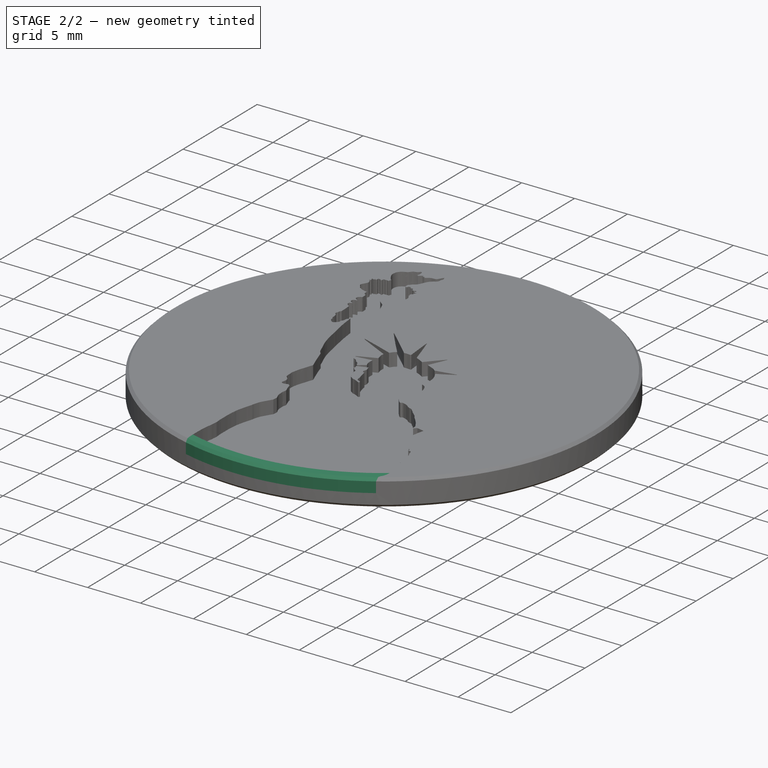
[diagram: stage 2 of 2 — iso view after this stage's code; geometry added in this stage tinted green]
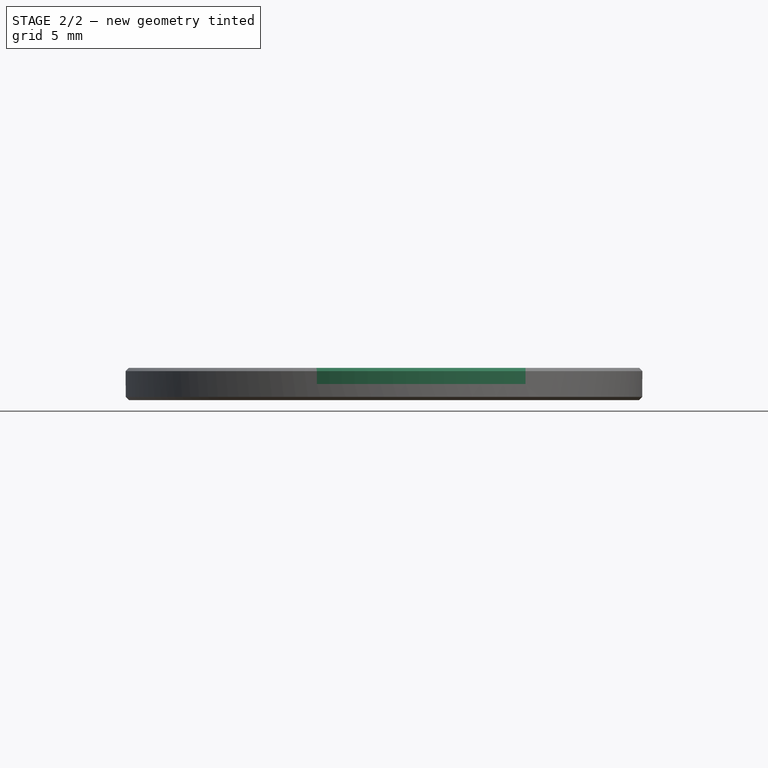
[diagram: stage 2 of 2 — front view after this stage's code; geometry added in this stage tinted green]
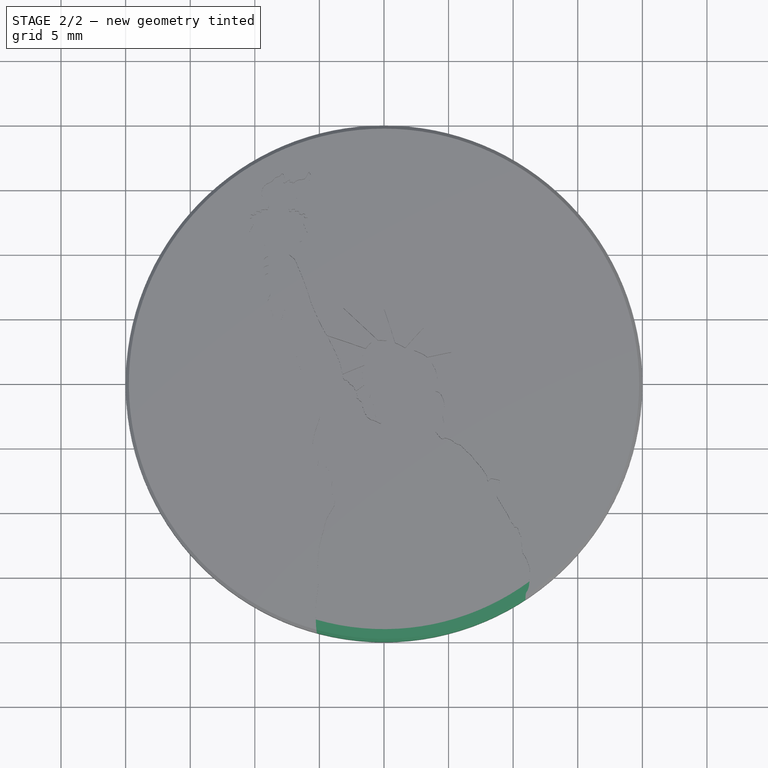
[diagram: stage 2 of 2 — top view after this stage's code; geometry added in this stage tinted green]
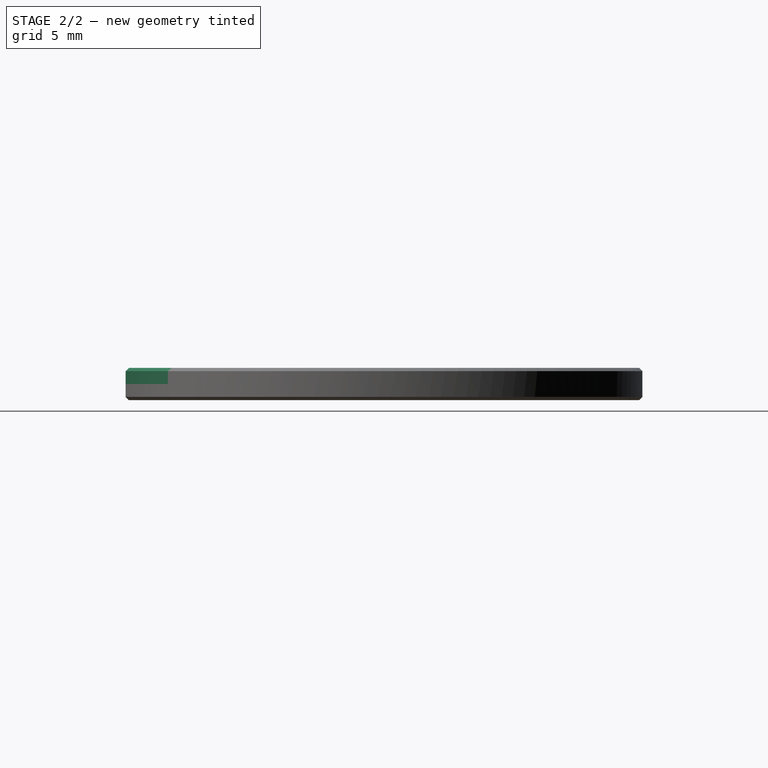
[diagram: stage 2 of 2 — right view after this stage's code; geometry added in this stage tinted green]
FEATURE [PartDesign::Revolution] Revolution001  label="CoinEdgeRevolution"
  Angle = 360
  Axis = (-1e-16,1e-16,1)
  Base = (0,0,0)
  BaseFeature = -> Pocket
  Placement = pos=(0,0,0) rot=(0.57735,0.57735,0.57735;2.0944rad)
  Profile = -> Sketch002
  ReferenceAxis = -> Sketch002 [V_Axis]
  Reversed = true
FEATURE [PartDesign::Body] Body
  Group = -> [DatumPlane,Sketch001,DatumPlane001,Sketch,Revolution,Sketch002,Sketch004,Sketch005,Pocket,Revolution001]
  Origin = -> Origin
  Tip = -> Revolution001
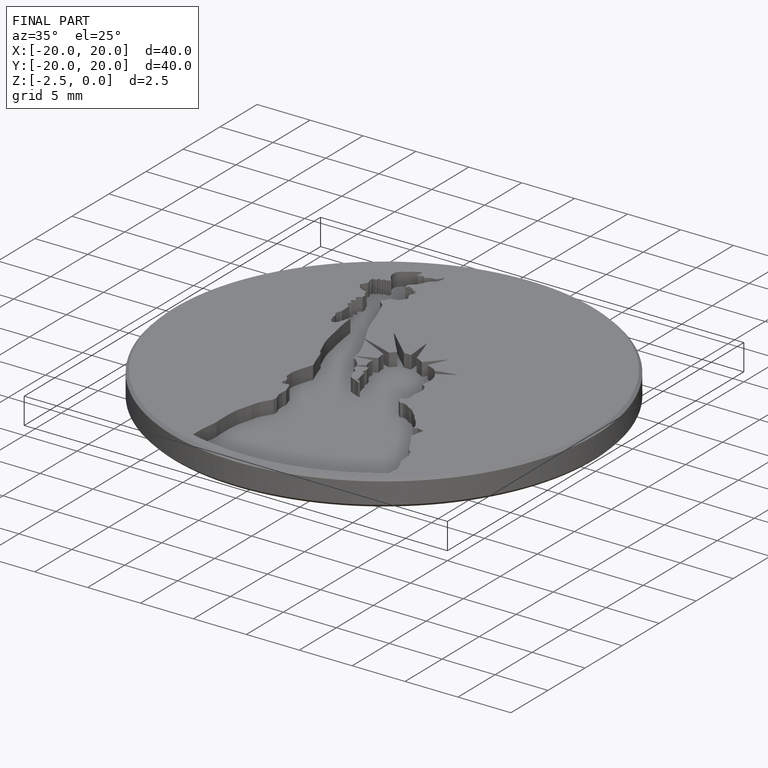
[diagram: finished part — iso view with bounding-box wireframe]
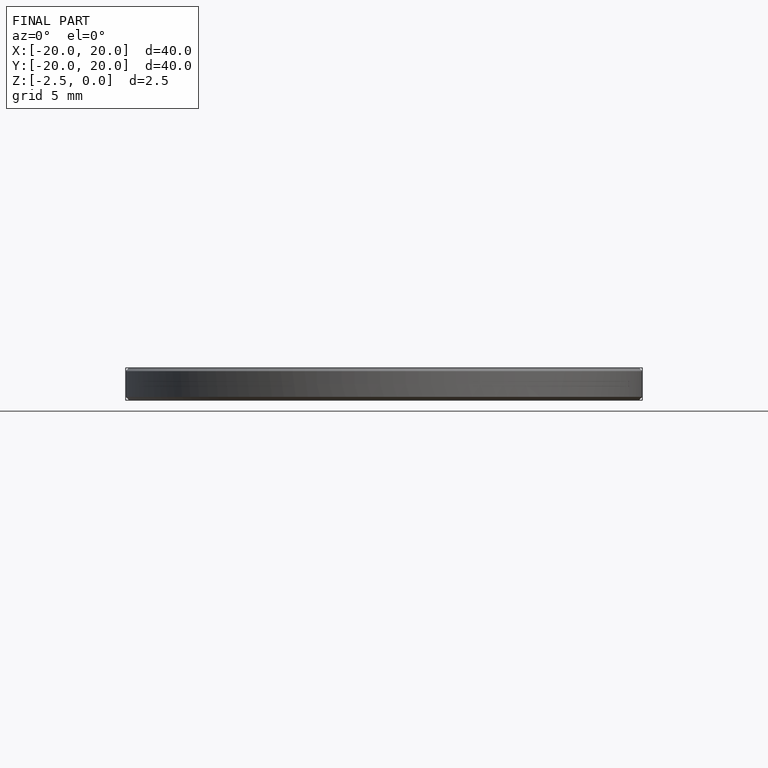
[diagram: finished part — front view with bounding-box wireframe]
